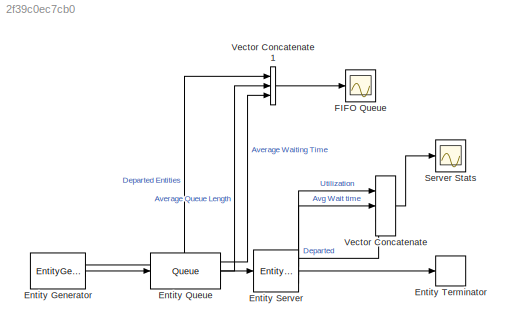
MODEL slx_2f39c0ec7cb0
KIND model
CONFIG AbsTol = auto
CONFIG EnableMultiTasking = off
CONFIG FixedStep = auto
CONFIG MaxStep = auto
CONFIG MinStep = auto
CONFIG RelTol = 1e-3
CONFIG SampleTimeConstraint = Unconstrained
CONFIG SolverName = VariableStepAuto
CONFIG StartTime = 0.0
CONFIG StopTime = 25
BLOCK [EntityGenerator] Entity Generator
  EntityType = Structured
  EntityTypeName = Entity
  NumberEntitiesDeparted = on
  OutputPortMap = o0,o3
  OutputPortMessageModes = n,m
  Ports = [0, 2]
BLOCK [Queue] Entity Queue
  AverageQueueLength = on
  AverageWait = on
  Capacity = Inf
  InputPortMap = u0
  InputPortMessageModes = m
  OutputPortMap = o2,o3,o5
  OutputPortMessageModes = n,n,m
  Ports = [1, 3]
BLOCK [EntityServer] Entity Server
  AverageWait = on
  Capacity = 1
  InputPortMap = u2
  InputPortMessageModes = m
  NumberEntitiesDeparted = on
  OutputPortMap = o0,o4,o5,o9
  OutputPortMessageModes = n,n,n,m
  Ports = [1, 4]
  Utilization = on
BLOCK [EntityTerminator] Entity Terminator
  InputPortMap = u0
  InputPortMessageModes = m
  Ports = [1]
BLOCK [Scope] FIFO Queue
  Floating = off
  NumInputPorts = 1
  Ports = [1]
  ScopeSpecificationString = Simulink.scopes.TimeScopeBlockCfg('CurrentConfiguration', extmgr.ConfigurationSet(extmgr.Configuration('Core','General UI',true),extmgr.Configuration('Core','Source UI',true),extmgr.Configuration('Sources','WiredSimulink',true,'DataLoggingVariableName','ScopeData1'),extmgr.Configuration('Visuals','Time Domain',true,'SerializedDisplays',{struct('MinYLimReal','-3.25','MaxYLimReal','29.25','YLabelRea...<+1435ch>
BLOCK [Scope] Server Stats
  Floating = off
  NumInputPorts = 1
  Ports = [1]
  ScopeSpecificationString = Simulink.scopes.TimeScopeBlockCfg('CurrentConfiguration', extmgr.ConfigurationSet(extmgr.Configuration('Core','General UI',true),extmgr.Configuration('Core','Source UI',true),extmgr.Configuration('Sources','WiredSimulink',true),extmgr.Configuration('Visuals','Time Domain',true,'SerializedDisplays',{struct('MinYLimReal','-3.125','MaxYLimReal','28.125','YLabelReal','','MinYLimMag','0.00000','MaxYLim...<+1378ch>
BLOCK [Concatenate] Vector Concatenate
  NumInputs = 3
  Ports = [3, 1]
BLOCK [Concatenate] Vector Concatenate1
  NumInputs = 3
  Ports = [3, 1]
LINE Entity Generator:1 -> Vector Concatenate1:1
LINE Entity Generator:2 -> Entity Queue:1
LINE Entity Queue:1 -> Vector Concatenate1:3
LINE Entity Queue:2 -> Vector Concatenate1:2
LINE Entity Queue:3 -> Entity Server:1
LINE Entity Server:1 -> Vector Concatenate:3
LINE Entity Server:2 -> Vector Concatenate:2
LINE Entity Server:3 -> Vector Concatenate:1
LINE Entity Server:4 -> Entity Terminator:1
LINE Vector Concatenate1:1 -> FIFO Queue:1
LINE Vector Concatenate:1 -> Server Stats:1
